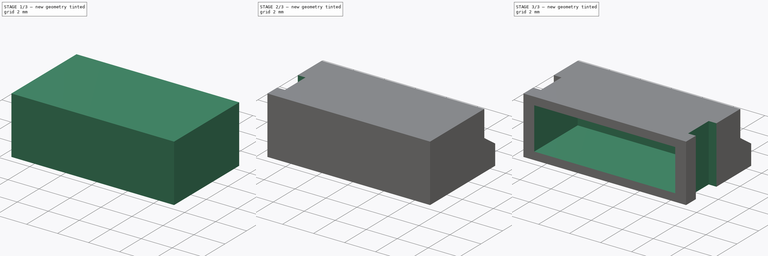
[diagram: build sequence overview — one tinted view per stage of 3, left to right]
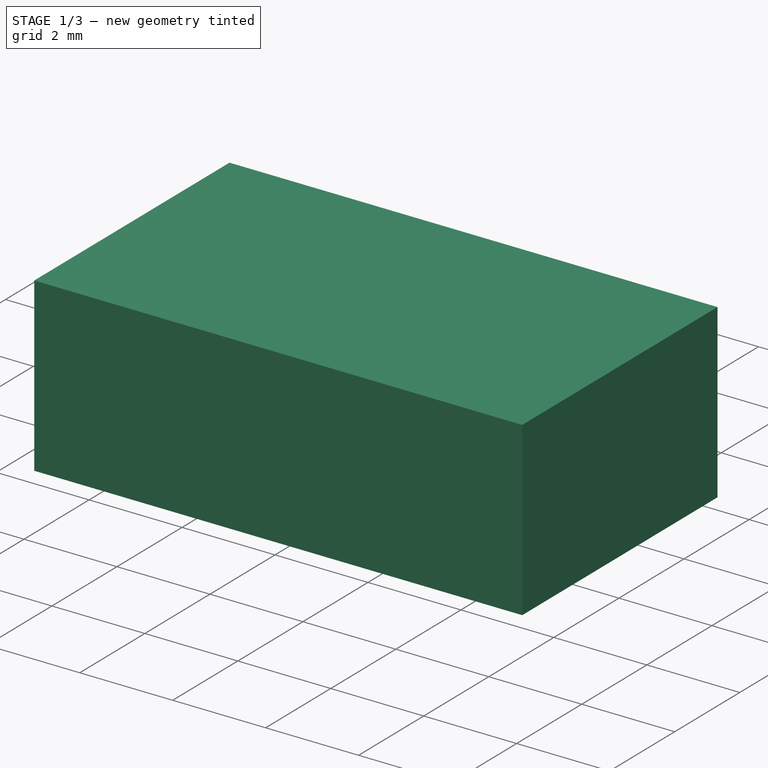
[diagram: stage 1 of 3 — iso view after this stage's code; geometry added in this stage tinted green]
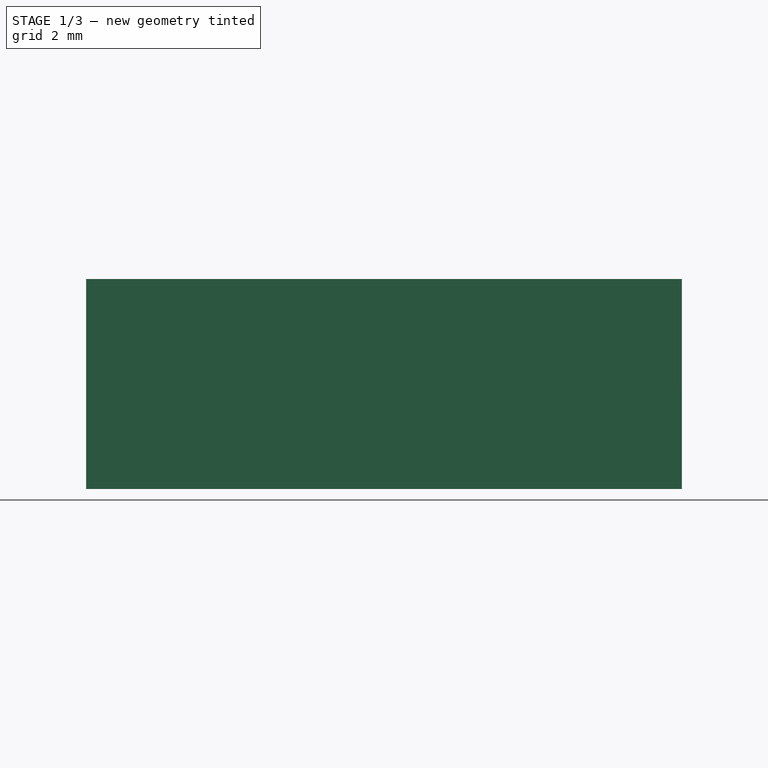
[diagram: stage 1 of 3 — front view after this stage's code; geometry added in this stage tinted green]
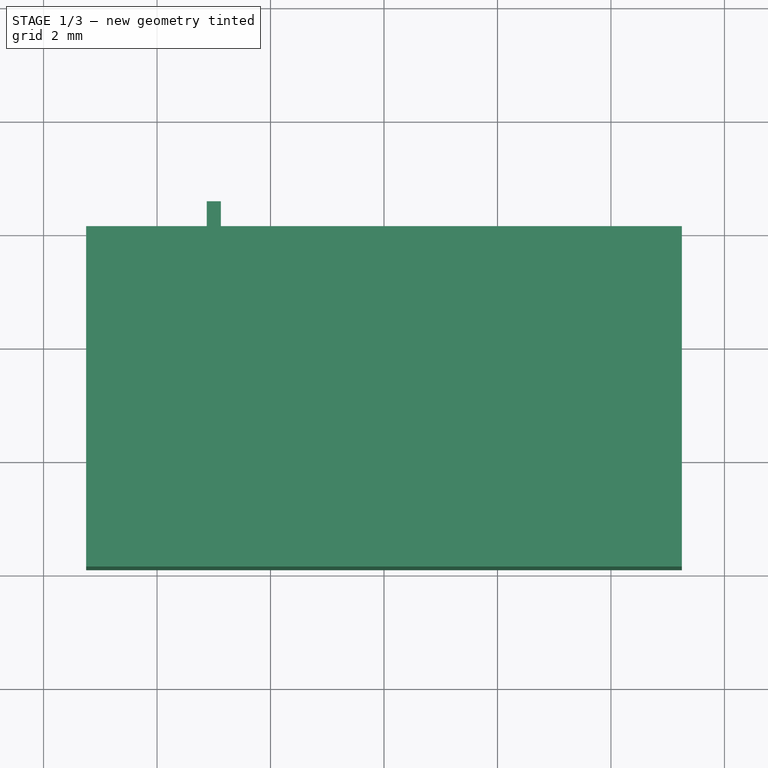
[diagram: stage 1 of 3 — top view after this stage's code; geometry added in this stage tinted green]
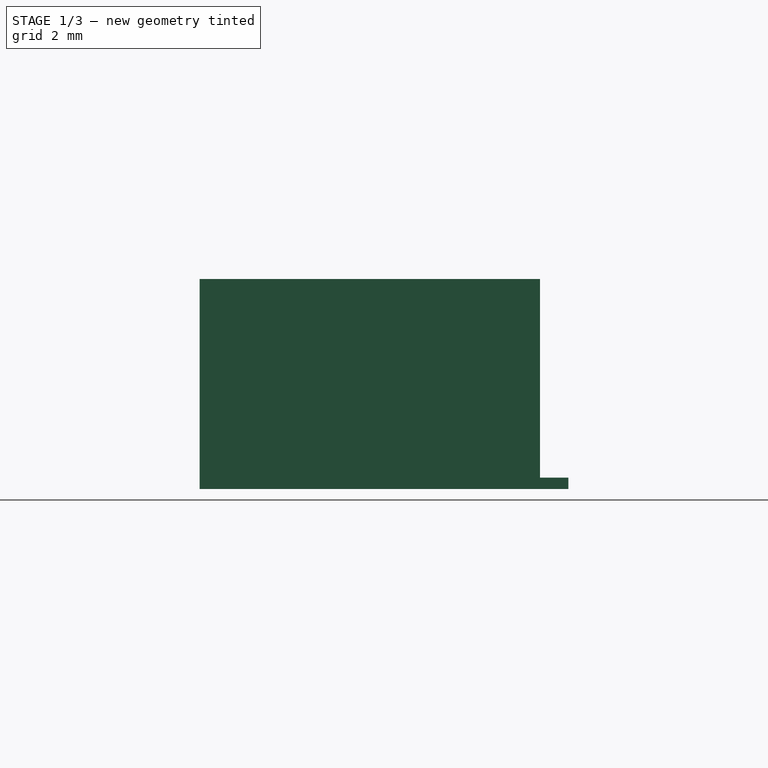
[diagram: stage 1 of 3 — right view after this stage's code; geometry added in this stage tinted green]
FCSTD DOCUMENT  (FreeCAD 1.0R39109 (Git))
Label: JST ZH SM4 side
License: All rights reserved
LicenseURL: http://en.wikipedia.org/wiki/All_rights_reserved
objects: Sketcher::SketchObject×5, PartDesign::Pocket×3, PartDesign::Pad×2, Spreadsheet::Sheet×1, PartDesign::LinearPattern×1, PartDesign::Mirrored×1, PartDesign::Body×1
note: 30 computed .brp shape members not serialized (recipe doc carries the construction recipe); baked Part::Feature solids carry a one-line shape summary decoded from their .brp

FEATURE [Spreadsheet::Sheet] Spreadsheet  label="dimensions"
  cells = A1='pins; B1(pinCount)=5
FEATURE [Sketcher::SketchObject] Sketch
  ArcFitTolerance = 1e-06
  AttachmentSupport = -> [XY_Plane]
  FullyConstrained = true
  MakeInternals = false
  MapMode = 5
  expr: Constraints[9] = 1.5 * <<dimensions>>.pinCount + 3
  sketch-geometry (4):
    g0: LineSegment StartX=-5.25 StartY=2.1 StartZ=0 EndX=-5.25 EndY=-3.9 EndZ=0
    g1: LineSegment StartX=-5.25 StartY=-3.9 StartZ=0 EndX=5.25 EndY=-3.9 EndZ=0
    g2: LineSegment StartX=5.25 StartY=-3.9 StartZ=0 EndX=5.25 EndY=2.1 EndZ=0
    g3: LineSegment StartX=5.25 StartY=2.1 StartZ=0 EndX=-5.25 EndY=2.1 EndZ=0
  constraints (11):
    c: Coincident(g0,g1)
    c: Coincident(g1,g2)
    c: Coincident(g2,g3)
    c: Coincident(g3,g0)
    c: Vertical(g0)
    c: Vertical(g2)
    c: Horizontal(g1)
    c: Symmetric(g0,g2,g-2)
    c: DistanceY(g2,g2) = 6
    c: DistanceX(g3,g3) = 10.5
    c: DistanceY(g-1,g0) = 2.1
FEATURE [PartDesign::Pad] Pad  label="main"
  Direction = (0,0,1)
  Length = 3.7
  Length2 = 10
  Profile = -> Sketch
  ReferenceAxis = -> Sketch [N_Axis]
  Suppressed = false
  Type = 0
FEATURE [Sketcher::SketchObject] Sketch001
  ArcFitTolerance = 1e-06
  AttachmentSupport = -> [XY_Plane]
  FullyConstrained = true
  MakeInternals = false
  MapMode = 5
  expr: Constraints[10] = (1.5 * <<dimensions>>.pinCount - 1.5) * 1 / 2
  sketch-geometry (5):
    g0: LineSegment StartX=-3.125 StartY=2.6 StartZ=0 EndX=-3.125 EndY=2.1 EndZ=0
    g1: LineSegment StartX=-3.125 StartY=2.1 StartZ=0 EndX=-2.875 EndY=2.1 EndZ=0
    g2: LineSegment StartX=-2.875 StartY=2.1 StartZ=0 EndX=-2.875 EndY=2.6 EndZ=0
    g3: LineSegment StartX=-2.875 StartY=2.6 StartZ=0 EndX=-3.125 EndY=2.6 EndZ=0
    g4: GeomPoint X=-3 Y=2.6 Z=0
  constraints (13):
    c: Coincident(g0,g1)
    c: Coincident(g1,g2)
    c: Coincident(g2,g3)
    c: Coincident(g3,g0)
    c: Vertical(g0)
    c: Vertical(g2)
    c: Horizontal(g1)
    c: Horizontal(g3)
    c: Symmetric(g3,g3,g4)
    c: DistanceX(g3,g3) = 0.25
    c: DistanceX(g4,g-1) = 3
    c: DistanceY(g0,g0) = 0.5
    c: DistanceY(g-1,g0) = 2.1
FEATURE [PartDesign::Pad] Pad001  label="terminal"
  BaseFeature = -> Pad
  Direction = (0,0,1)
  Length = 0.2
  Length2 = 10
  Profile = -> Sketch001
  ReferenceAxis = -> Sketch001 [N_Axis]
  Suppressed = false
  Type = 0
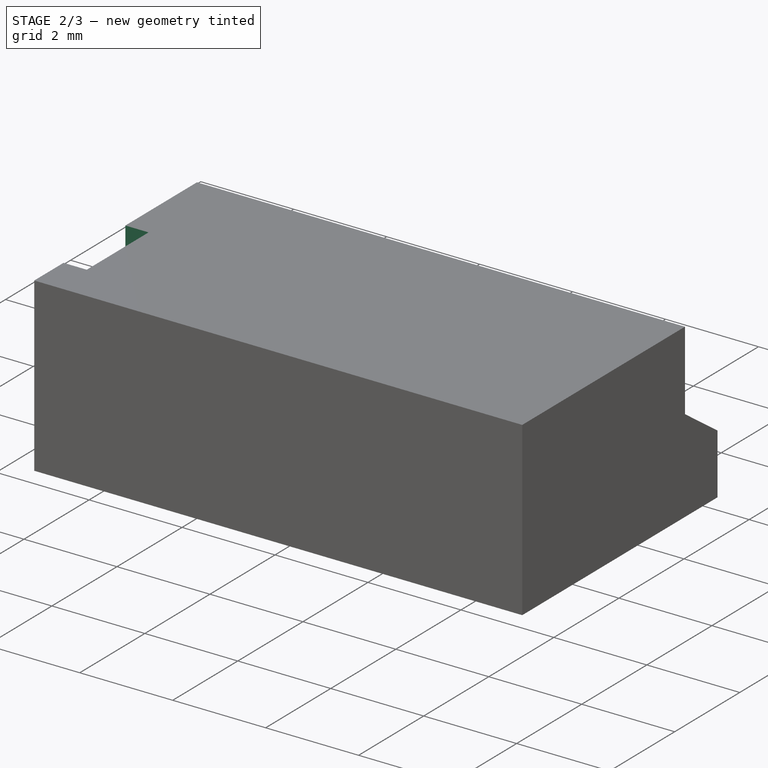
[diagram: stage 2 of 3 — iso view after this stage's code; geometry added in this stage tinted green]
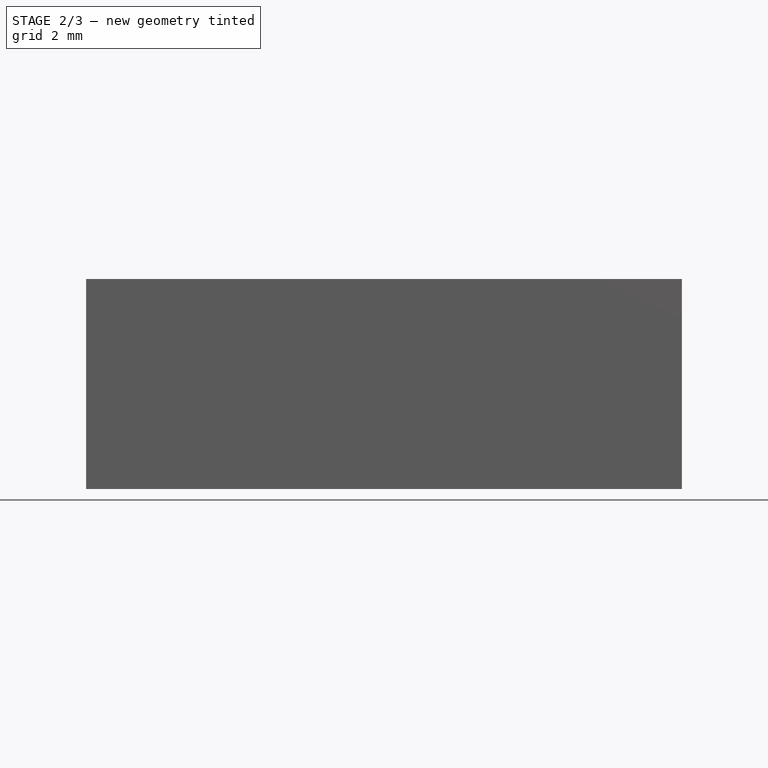
[diagram: stage 2 of 3 — front view after this stage's code; geometry added in this stage tinted green]
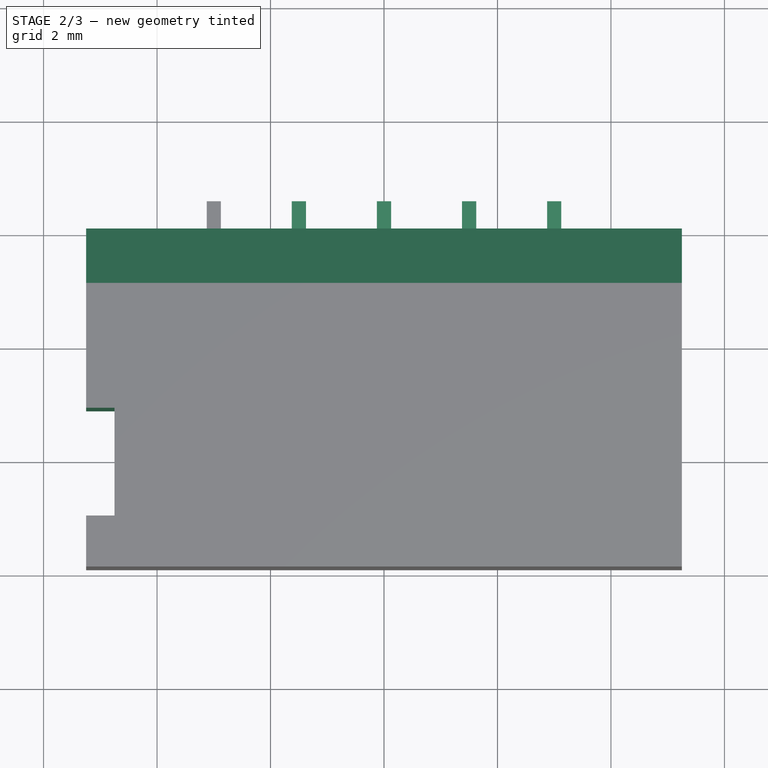
[diagram: stage 2 of 3 — top view after this stage's code; geometry added in this stage tinted green]
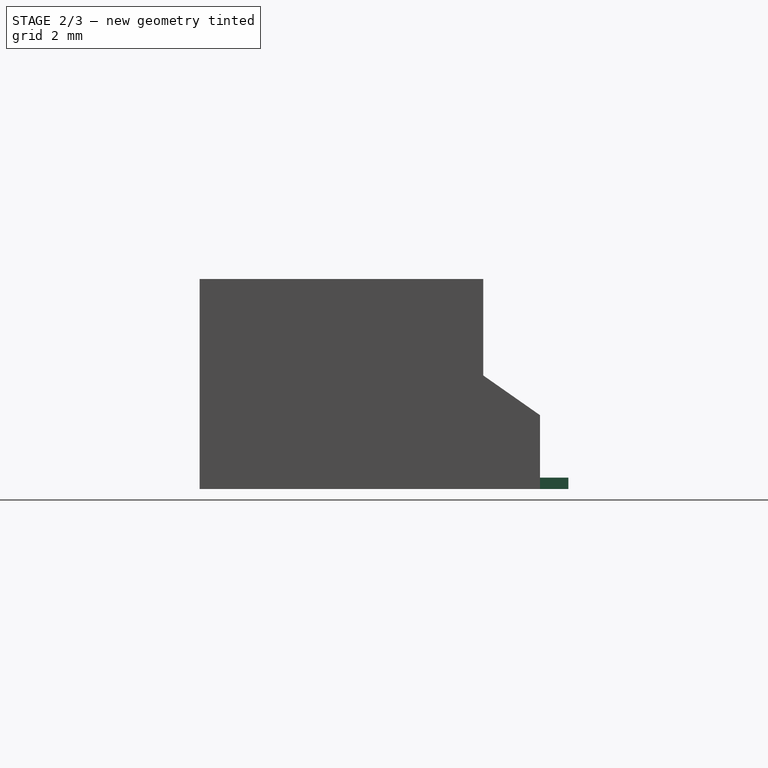
[diagram: stage 2 of 3 — right view after this stage's code; geometry added in this stage tinted green]
FEATURE [PartDesign::LinearPattern] LinearPattern  label="terminal pattern"
  BaseFeature = -> Pad001
  Direction = -> Sketch001 [H_Axis]
  Length = 6
  Mode = 0
  Occurrences = 5
  Offset = 1.5
  Originals = -> [Pad001]
  Suppressed = false
  TransformMode = 0
  expr: Length = 1.5 * <<dimensions>>.pinCount - 1.5
  expr: Occurrences = <<dimensions>>.pinCount
FEATURE [Sketcher::SketchObject] Sketch002
  ArcFitTolerance = 1e-06
  AttachmentSupport = -> [YZ_Plane]
  FullyConstrained = true
  MakeInternals = false
  MapMode = 5
  Placement = pos=(0,0,0) rot=(0.57735,0.57735,0.57735;2.0944rad)
  sketch-geometry (4):
    g0: LineSegment StartX=1.1 StartY=3.7 StartZ=0 EndX=2.1 EndY=3.7 EndZ=0
    g1: LineSegment StartX=2.1 StartY=3.7 StartZ=0 EndX=2.1 EndY=1.3 EndZ=0
    g2: LineSegment StartX=2.1 StartY=1.3 StartZ=0 EndX=1.1 EndY=2 EndZ=0
    g3: LineSegment StartX=1.1 StartY=3.7 StartZ=0 EndX=1.1 EndY=2 EndZ=0
  constraints (12):
    c: Horizontal(g0)
    c: Coincident(g1,g0)
    c: Vertical(g1)
    c: Coincident(g2,g1)
    c: Coincident(g3,g0)
    c: Coincident(g3,g2)
    c: Vertical(g3)
    c: DistanceX(g0,g0) = 1
    c: DistanceY(g-1,g1) = 1.3
    c: DistanceY(g3,g3) = 1.7
    c: DistanceY(g-1,g0) = 3.7
    c: DistanceX(g-1,g1) = 2.1
FEATURE [PartDesign::Pocket] Pocket  label="rear cut"
  BaseFeature = -> LinearPattern
  Direction = (-1,0,0)
  Length = 5
  Length2 = 5
  Midplane = true
  Profile = -> Sketch002
  ReferenceAxis = -> Sketch002 [N_Axis]
  Suppressed = false
  Type = 1
FEATURE [Sketcher::SketchObject] Sketch003
  ArcFitTolerance = 1e-06
  AttachmentSupport = -> [XY_Plane]
  ExternalGeometry = -> [Pocket]
  FullyConstrained = true
  MakeInternals = false
  MapMode = 5
  sketch-geometry (4):
    g0: LineSegment StartX=-5.25 StartY=-1.1 StartZ=0 EndX=-4.75 EndY=-1.1 EndZ=0
    g1: LineSegment StartX=-4.75 StartY=-1.1 StartZ=0 EndX=-4.75 EndY=-3 EndZ=0
    g2: LineSegment StartX=-4.75 StartY=-3 StartZ=0 EndX=-5.25 EndY=-3 EndZ=0
    g3: LineSegment StartX=-5.25 StartY=-3 StartZ=0 EndX=-5.25 EndY=-1.1 EndZ=0
  constraints (12):
    c: Horizontal(g0)
    c: Coincident(g1,g0)
    c: Vertical(g1)
    c: Coincident(g2,g1)
    c: PointOnObject(g2,g-3)
    c: Horizontal(g2)
    c: Coincident(g3,g2)
    c: Coincident(g3,g0)
    c: DistanceX(g0,g0) = 0.5
    c: DistanceY(g1,g1) = 1.9
    c: DistanceY(g0,g-1) = 1.1
    c: Vertical(g3)
FEATURE [PartDesign::Pocket] Pocket001  label="side cut"
  BaseFeature = -> Pocket
  Direction = (0,0,-1)
  Length = 5
  Length2 = 5
  Profile = -> Sketch003
  ReferenceAxis = -> Sketch003 [N_Axis]
  Reversed = true
  Suppressed = false
  Type = 1
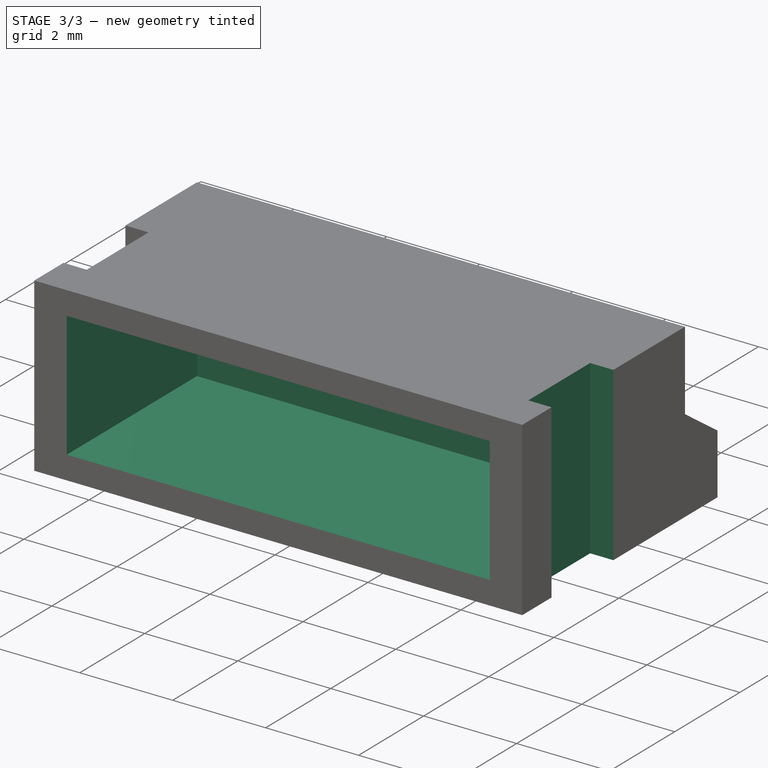
[diagram: stage 3 of 3 — iso view after this stage's code; geometry added in this stage tinted green]
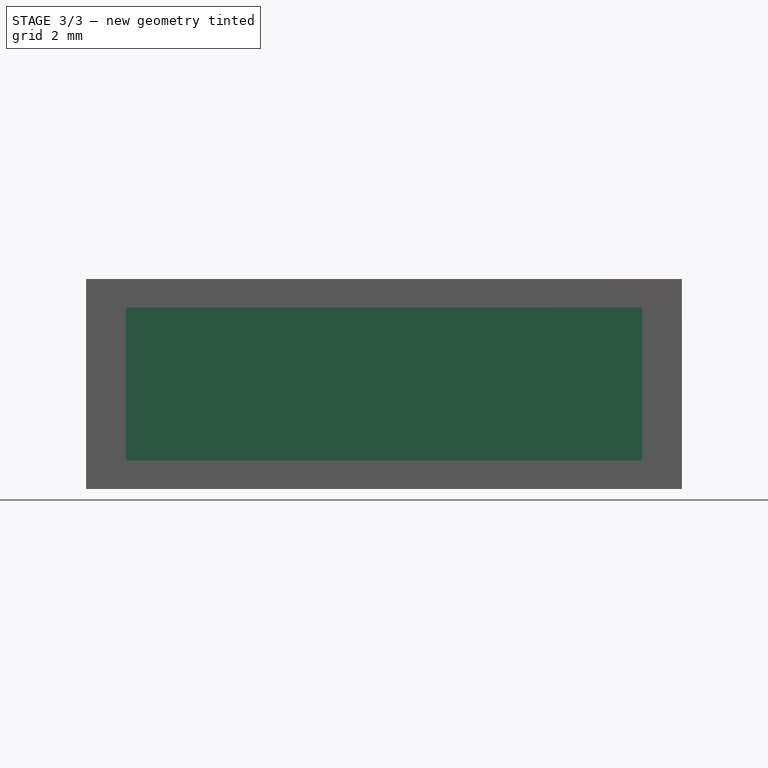
[diagram: stage 3 of 3 — front view after this stage's code; geometry added in this stage tinted green]
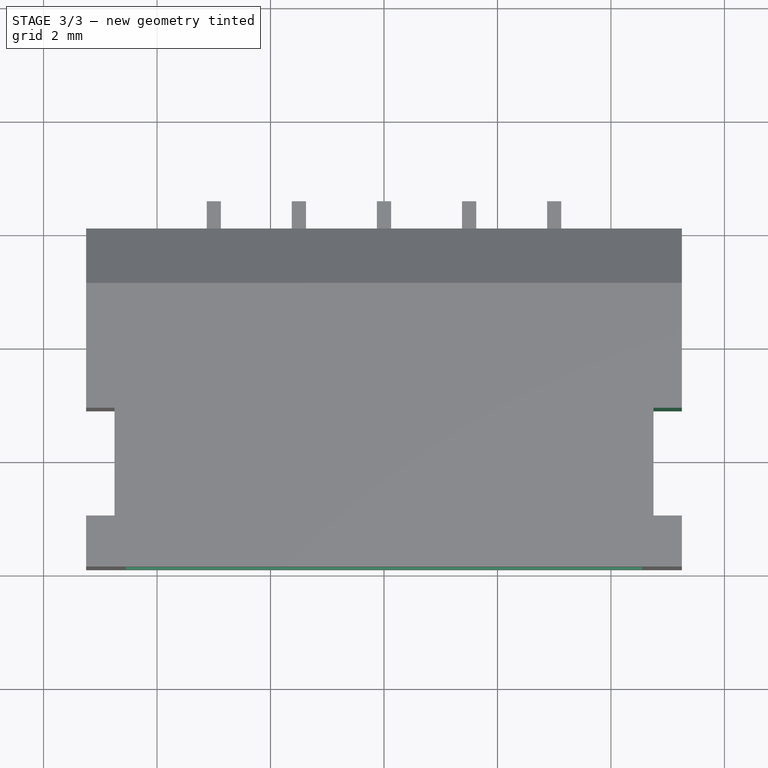
[diagram: stage 3 of 3 — top view after this stage's code; geometry added in this stage tinted green]
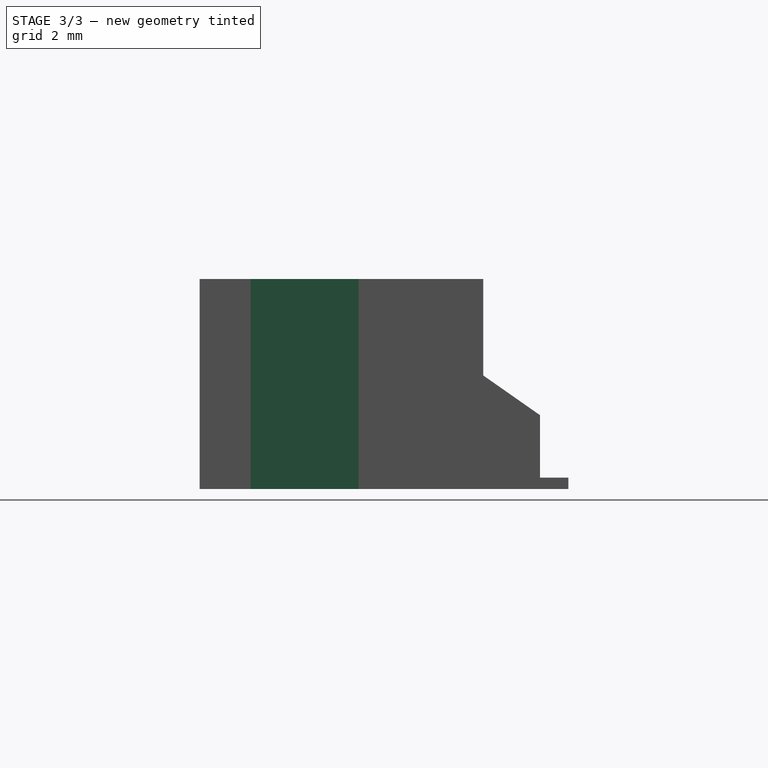
[diagram: stage 3 of 3 — right view after this stage's code; geometry added in this stage tinted green]
FEATURE [PartDesign::Mirrored] Mirrored  label="side cut pattern"
  BaseFeature = -> Pocket001
  MirrorPlane = -> YZ_Plane
  Originals = -> [Pocket001]
  Suppressed = false
  TransformMode = 0
FEATURE [Sketcher::SketchObject] Sketch004
  ArcFitTolerance = 1e-06
  AttachmentSupport = -> [Mirrored]
  ExternalGeometry = -> [Mirrored]
  FullyConstrained = true
  MakeInternals = false
  MapMode = 5
  Placement = pos=(0,-3.9,0) rot=(1,0,0;1.5708rad)
  sketch-geometry (4):
    g0: LineSegment StartX=-4.55 StartY=3.2 StartZ=0 EndX=-4.55 EndY=0.5 EndZ=0
    g1: LineSegment StartX=-4.55 StartY=0.5 StartZ=0 EndX=4.55 EndY=0.5 EndZ=0
    g2: LineSegment StartX=4.55 StartY=0.5 StartZ=0 EndX=4.55 EndY=3.2 EndZ=0
    g3: LineSegment StartX=4.55 StartY=3.2 StartZ=0 EndX=-4.55 EndY=3.2 EndZ=0
  constraints (11):
    c: Coincident(g0,g1)
    c: Coincident(g1,g2)
    c: Coincident(g2,g3)
    c: Coincident(g3,g0)
    c: Vertical(g0)
    c: Vertical(g2)
    c: Horizontal(g1)
    c: Symmetric(g2,g0,g-2)
    c: DistanceY(g0,g0) = 2.7
    c: DistanceY(g-1,g0) = 0.5
    c: DistanceX(g-3,g0) = 0.7
FEATURE [PartDesign::Pocket] Pocket002  label="plug pocket"
  BaseFeature = -> Mirrored
  Direction = (0,1,-2e-16)
  Length = 4
  Length2 = 5
  Profile = -> Sketch004
  ReferenceAxis = -> Sketch004 [N_Axis]
  Suppressed = false
  Type = 0
FEATURE [PartDesign::Body] Body
  AllowCompound = false
  Group = -> [Sketch,Pad,Sketch001,Pad001,LinearPattern,Sketch002,Pocket,Sketch003,Pocket001,Mirrored,Sketch004,Pocket002]
  Origin = -> Origin
  Tip = -> Pocket002
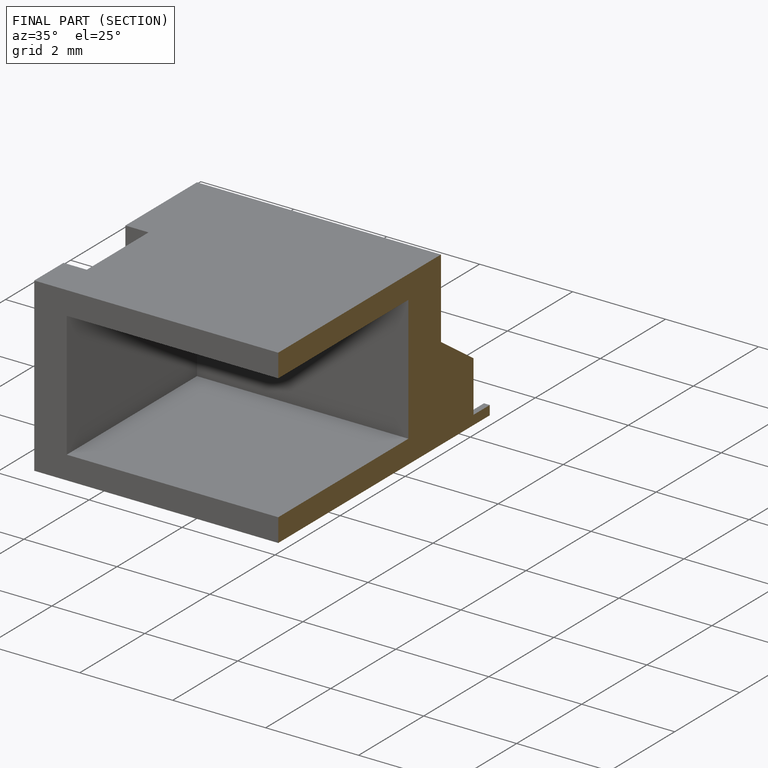
[diagram: finished part — half-section view (interior)]
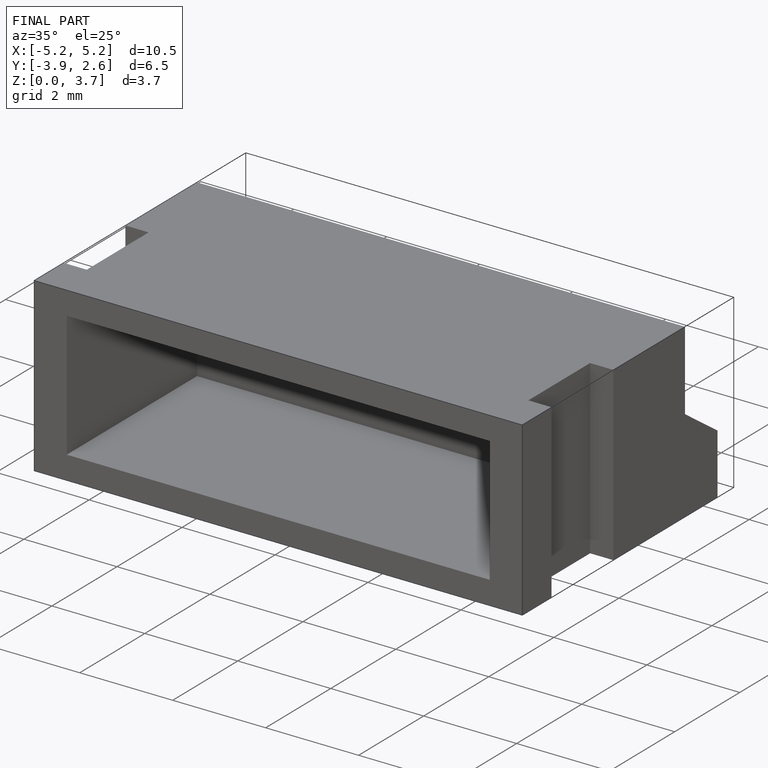
[diagram: finished part — iso view with bounding-box wireframe]
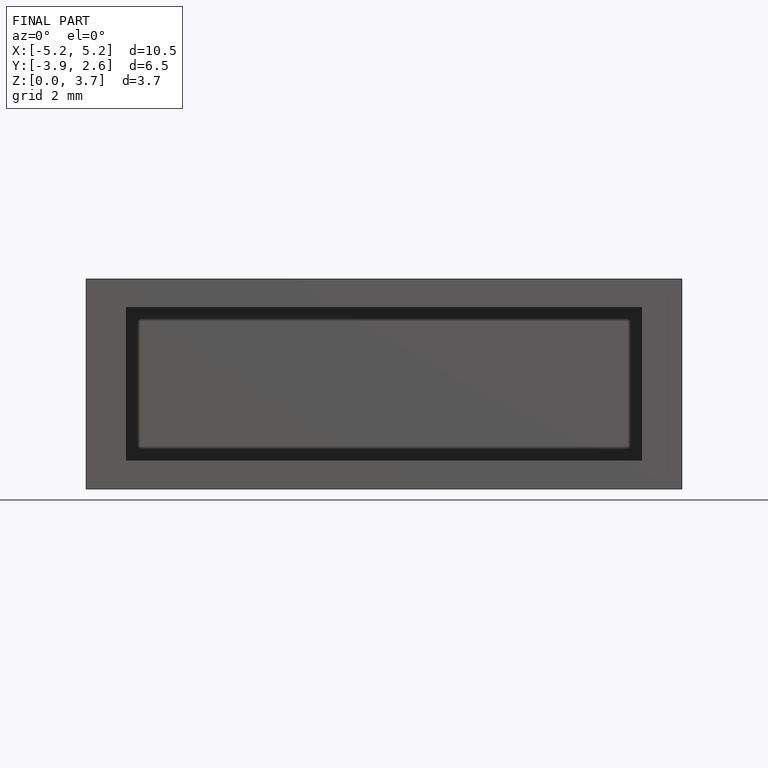
[diagram: finished part — front view with bounding-box wireframe]
